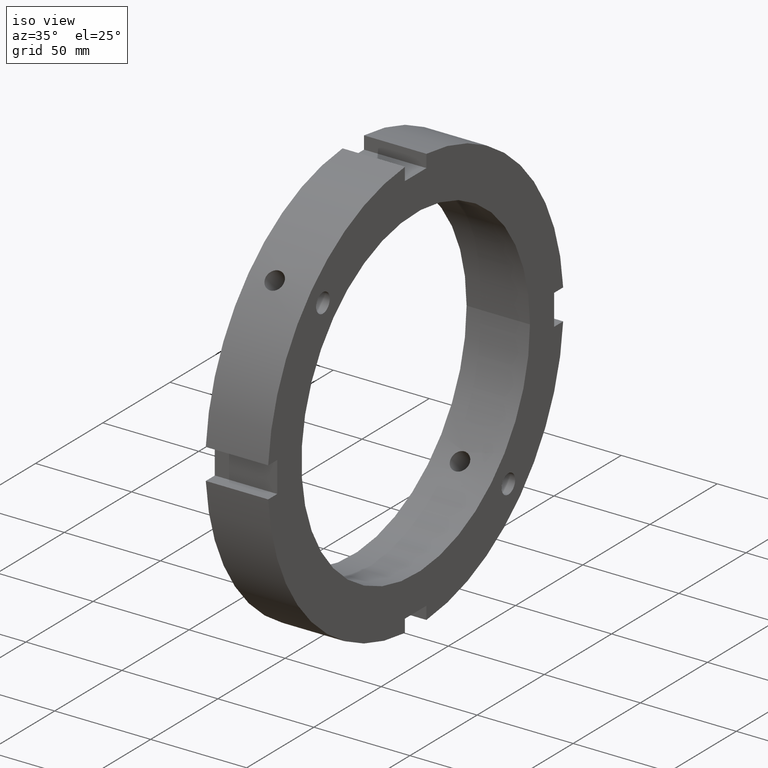
[diagram: clean part render]
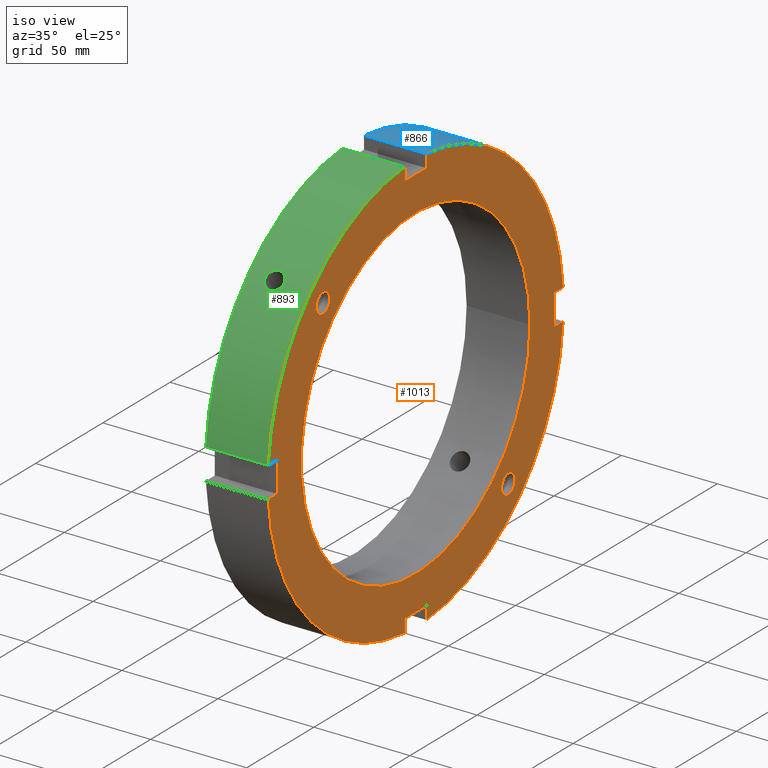
[diagram: same view with three faces highlighted in distinct colors, each labeled with its STEP entity id]
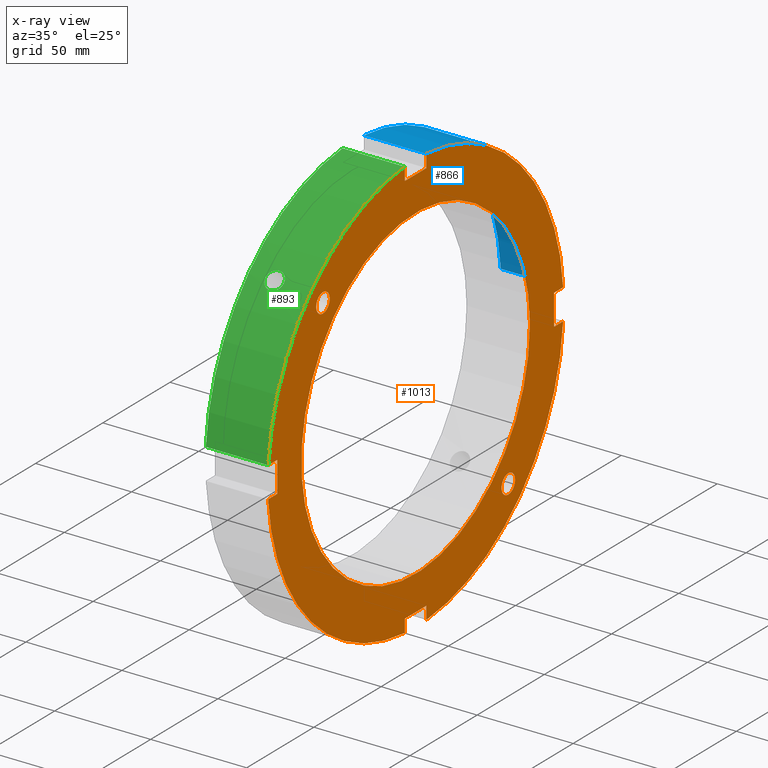
[diagram: x-ray of the same camera — body ghosted, the three highlighted faces saturated]
A machine part, iso view with three faces highlighted in distinct colors.
The next image is the same camera in x-ray (body ghosted, the three faces saturated) — at least one of them is partly hidden behind the body in this view.
Their STEP definitions:

[orange] entity #1013 — the highlighted planar face has unit normal (1, 0, 0).
#73=CARTESIAN_POINT('',(32.999999999999979,-73.995911165688355,68.942911165688386));
#74=VERTEX_POINT('',#73);
#75=CARTESIAN_POINT('',(32.999999999999979,-68.942911165688358,68.942911165688386));
#76=DIRECTION('',(-1.0,0.0,0.0));
#77=DIRECTION('',(0.0,-1.0,0.0));
#78=AXIS2_PLACEMENT_3D('',#75,#76,#77);
#79=CIRCLE('',#78,5.053);
#80=EDGE_CURVE('',#74,#74,#79,.T.);
#422=CARTESIAN_POINT('',(32.999999999999979,68.942911165688358,-73.995911165688369));
#423=VERTEX_POINT('',#422);
#424=CARTESIAN_POINT('',(32.999999999999979,68.942911165688358,-68.942911165688372));
#425=DIRECTION('',(-1.0,0.0,0.0));
#426=DIRECTION('',(0.0,0.0,-1.0));
#427=AXIS2_PLACEMENT_3D('',#424,#425,#426);
#428=CIRCLE('',#427,5.053);
#429=EDGE_CURVE('',#423,#423,#428,.T.);
#543=CARTESIAN_POINT('',(32.999999999999979,-8.000000000000014,-103.0));
#544=VERTEX_POINT('',#543);
#551=CARTESIAN_POINT('',(32.999999999999979,-8.000000000000014,-109.70870521521982));
#552=VERTEX_POINT('',#551);
#553=CARTESIAN_POINT('',(32.999999999999979,-8.000000000000009,-109.70870521521982));
#554=DIRECTION('',(0.0,0.0,1.0));
#555=VECTOR('',#554,6.708705215219823);
#556=LINE('',#553,#555);
#557=EDGE_CURVE('',#552,#544,#556,.T.);
#583=CARTESIAN_POINT('',(32.999999999999979,7.999999999999973,-109.70870521521982));
#584=VERTEX_POINT('',#583);
#591=CARTESIAN_POINT('',(32.999999999999979,7.999999999999976,-103.0));
#592=VERTEX_POINT('',#591);
#593=CARTESIAN_POINT('',(32.999999999999979,7.999999999999973,-103.00000000000001));
#594=DIRECTION('',(0.0,0.0,-1.0));
#595=VECTOR('',#594,6.708705215219808);
#596=LINE('',#593,#595);
#597=EDGE_CURVE('',#592,#584,#596,.T.);
#620=CARTESIAN_POINT('',(32.999999999999979,-8.000000000000014,-102.99999999999999));
#621=DIRECTION('',(0.0,1.0,0.0));
#622=VECTOR('',#621,15.999999999999993);
#623=LINE('',#620,#622);
#624=EDGE_CURVE('',#544,#592,#623,.T.);
#645=CARTESIAN_POINT('',(32.999999999999979,-103.0,8.000000000000009));
#646=VERTEX_POINT('',#645);
#653=CARTESIAN_POINT('',(32.999999999999979,-109.70870521521982,8.000000000000007));
#654=VERTEX_POINT('',#653);
#655=CARTESIAN_POINT('',(32.999999999999979,-109.70870521521982,8.000000000000007));
#656=DIRECTION('',(0.0,1.0,0.0));
#657=VECTOR('',#656,6.708705215219823);
#658=LINE('',#655,#657);
#659=EDGE_CURVE('',#654,#646,#658,.T.);
#685=CARTESIAN_POINT('',(32.999999999999979,-109.70870521521982,-7.99999999999998));
#686=VERTEX_POINT('',#685);
#693=CARTESIAN_POINT('',(32.999999999999979,-103.0,-7.999999999999981));
#694=VERTEX_POINT('',#693);
#695=CARTESIAN_POINT('',(32.999999999999979,-103.0,-7.999999999999981));
#696=DIRECTION('',(0.0,-1.0,0.0));
#697=VECTOR('',#696,6.708705215219823);
#698=LINE('',#695,#697);
#699=EDGE_CURVE('',#694,#686,#698,.T.);
#722=CARTESIAN_POINT('',(32.999999999999979,-103.0,8.000000000000007));
#723=DIRECTION('',(0.0,0.0,-1.0));
#724=VECTOR('',#723,15.999999999999989);
#725=LINE('',#722,#724);
#726=EDGE_CURVE('',#646,#694,#725,.T.);
#747=CARTESIAN_POINT('',(32.999999999999979,8.000000000000002,103.0));
#748=VERTEX_POINT('',#747);
#755=CARTESIAN_POINT('',(32.999999999999979,8.0,109.70870521521982));
#756=VERTEX_POINT('',#755);
#757=CARTESIAN_POINT('',(32.999999999999979,8.000000000000011,109.70870521521982));
#758=DIRECTION('',(0.0,0.0,-1.0));
#759=VECTOR('',#758,6.708705215219823);
#760=LINE('',#757,#759);
#761=EDGE_CURVE('',#756,#748,#760,.T.);
#787=CARTESIAN_POINT('',(32.999999999999979,-7.999999999999986,109.70870521521982));
#788=VERTEX_POINT('',#787);
#795=CARTESIAN_POINT('',(32.999999999999979,-7.999999999999989,103.0));
#796=VERTEX_POINT('',#795);
#797=CARTESIAN_POINT('',(32.999999999999979,-7.999999999999988,103.0));
#798=DIRECTION('',(0.0,0.0,1.0));
#799=VECTOR('',#798,6.708705215219823);
#800=LINE('',#797,#799);
#801=EDGE_CURVE('',#796,#788,#800,.T.);
#824=CARTESIAN_POINT('',(32.999999999999979,8.000000000000007,103.0));
#825=DIRECTION('',(0.0,-1.0,0.0));
#826=VECTOR('',#825,15.999999999999993);
#827=LINE('',#824,#826);
#828=EDGE_CURVE('',#748,#796,#827,.T.);
#840=CARTESIAN_POINT('',(32.999999999999979,109.70870521521982,7.999999999999993));
#841=VERTEX_POINT('',#840);
#842=CARTESIAN_POINT('',(32.999999999999979,0.0,0.0));
#843=DIRECTION('',(1.0,0.0,0.0));
#844=DIRECTION('',(0.0,1.0,0.0));
#845=AXIS2_PLACEMENT_3D('',#842,#843,#844);
#846=CIRCLE('',#845,110.0);
#847=EDGE_CURVE('',#841,#756,#846,.T.);
#873=CARTESIAN_POINT('',(32.999999999999979,0.0,0.0));
#874=DIRECTION('',(1.0,0.0,0.0));
#875=DIRECTION('',(0.0,1.0,0.0));
#876=AXIS2_PLACEMENT_3D('',#873,#874,#875);
#877=CIRCLE('',#876,110.0);
#878=EDGE_CURVE('',#788,#654,#877,.T.);
#909=CARTESIAN_POINT('',(32.999999999999979,109.70870521521982,-7.999999999999994));
#910=VERTEX_POINT('',#909);
#917=CARTESIAN_POINT('',(32.999999999999979,0.0,0.0));
#918=DIRECTION('',(1.0,0.0,0.0));
#919=DIRECTION('',(0.0,1.0,0.0));
#920=AXIS2_PLACEMENT_3D('',#917,#918,#919);
#921=CIRCLE('',#920,110.0);
#922=EDGE_CURVE('',#584,#910,#921,.T.);
#936=CARTESIAN_POINT('',(32.999999999999979,0.0,0.0));
#937=DIRECTION('',(1.0,0.0,0.0));
#938=DIRECTION('',(0.0,1.0,0.0));
#939=AXIS2_PLACEMENT_3D('',#936,#937,#938);
#940=CIRCLE('',#939,110.0);
#941=EDGE_CURVE('',#686,#552,#940,.T.);
#954=CARTESIAN_POINT('',(32.999999999999979,97.5,0.0));
#955=DIRECTION('',(1.0,0.0,0.0));
#956=DIRECTION('',(0.0,0.0,-1.0));
#957=AXIS2_PLACEMENT_3D('',#954,#955,#956);
#958=PLANE('',#957);
#959=ORIENTED_EDGE('',*,*,#557,.T.);
#960=ORIENTED_EDGE('',*,*,#624,.T.);
#961=ORIENTED_EDGE('',*,*,#597,.T.);
#962=ORIENTED_EDGE('',*,*,#922,.T.);
#963=CARTESIAN_POINT('',(32.999999999999979,103.0,-7.999999999999995));
#964=VERTEX_POINT('',#963);
#965=CARTESIAN_POINT('',(32.999999999999979,109.70870521521982,-7.999999999999995));
#966=DIRECTION('',(0.0,-1.0,0.0));
#967=VECTOR('',#966,6.708705215219823);
#968=LINE('',#965,#967);
#969=EDGE_CURVE('',#910,#964,#968,.T.);
#970=ORIENTED_EDGE('',*,*,#969,.T.);
#971=CARTESIAN_POINT('',(32.999999999999979,103.0,7.999999999999995));
#972=VERTEX_POINT('',#971);
#973=CARTESIAN_POINT('',(32.999999999999979,103.0,-7.999999999999996));
#974=DIRECTION('',(0.0,0.0,1.0));
#975=VECTOR('',#974,15.999999999999989);
#976=LINE('',#973,#975);
#977=EDGE_CURVE('',#964,#972,#976,.T.);
#978=ORIENTED_EDGE('',*,*,#977,.T.);
#979=CARTESIAN_POINT('',(32.999999999999979,103.0,7.999999999999995));
#980=DIRECTION('',(0.0,1.0,0.0));
#981=VECTOR('',#980,6.708705215219823);
#982=LINE('',#979,#981);
#983=EDGE_CURVE('',#972,#841,#982,.T.);
#984=ORIENTED_EDGE('',*,*,#983,.T.);
#985=ORIENTED_EDGE('',*,*,#847,.T.);
#986=ORIENTED_EDGE('',*,*,#761,.T.);
#987=ORIENTED_EDGE('',*,*,#828,.T.);
#988=ORIENTED_EDGE('',*,*,#801,.T.);
#989=ORIENTED_EDGE('',*,*,#878,.T.);
#990=ORIENTED_EDGE('',*,*,#659,.T.);
#991=ORIENTED_EDGE('',*,*,#726,.T.);
#992=ORIENTED_EDGE('',*,*,#699,.T.);
#993=ORIENTED_EDGE('',*,*,#941,.T.);
#994=EDGE_LOOP('',(#959,#960,#961,#962,#970,#978,#984,#985,#986,#987,#988,#989,#990,#991,#992,#993));
#995=FACE_OUTER_BOUND('',#994,.T.);
#996=ORIENTED_EDGE('',*,*,#80,.T.);
#997=EDGE_LOOP('',(#996));
#998=FACE_BOUND('',#997,.T.);
#999=ORIENTED_EDGE('',*,*,#429,.T.);
#1000=EDGE_LOOP('',(#999));
#1001=FACE_BOUND('',#1000,.T.);
#1002=CARTESIAN_POINT('',(32.999999999999986,85.0,0.0));
#1003=VERTEX_POINT('',#1002);
#1004=CARTESIAN_POINT('',(32.999999999999986,0.0,0.0));
#1005=DIRECTION('',(1.0,0.0,0.0));
#1006=DIRECTION('',(0.0,1.0,0.0));
#1007=AXIS2_PLACEMENT_3D('',#1004,#1005,#1006);
#1008=CIRCLE('',#1007,85.0);
#1009=EDGE_CURVE('',#1003,#1003,#1008,.T.);
#1010=ORIENTED_EDGE('',*,*,#1009,.F.);
#1011=EDGE_LOOP('',(#1010));
#1012=FACE_BOUND('',#1011,.T.);
#1013=ADVANCED_FACE('',(#995,#998,#1001,#1012),#958,.T.);

[blue] entity #866 — the highlighted cylindrical surface (partial cylindrical patch) has radius 110 mm, axis along (1, 0, 0).
#739=CARTESIAN_POINT('',(0.499999999999967,7.999999999999999,109.70870521521982));
#740=VERTEX_POINT('',#739);
#755=CARTESIAN_POINT('',(32.999999999999979,8.0,109.70870521521982));
#756=VERTEX_POINT('',#755);
#763=CARTESIAN_POINT('',(0.499999999999968,8.000000000000002,109.70870521521982));
#764=DIRECTION('',(1.0,0.0,0.0));
#765=VECTOR('',#764,32.500000000000014);
#766=LINE('',#763,#765);
#767=EDGE_CURVE('',#740,#756,#766,.T.);
#834=CARTESIAN_POINT('',(16.749999999999975,0.0,0.0));
#835=DIRECTION('',(1.0,0.0,0.0));
#836=DIRECTION('',(0.0,1.0,0.0));
#837=AXIS2_PLACEMENT_3D('',#834,#835,#836);
#838=CYLINDRICAL_SURFACE('',#837,110.0);
#839=ORIENTED_EDGE('',*,*,#767,.T.);
#840=CARTESIAN_POINT('',(32.999999999999979,109.70870521521982,7.999999999999993));
#841=VERTEX_POINT('',#840);
#842=CARTESIAN_POINT('',(32.999999999999979,0.0,0.0));
#843=DIRECTION('',(1.0,0.0,0.0));
#844=DIRECTION('',(0.0,1.0,0.0));
#845=AXIS2_PLACEMENT_3D('',#842,#843,#844);
#846=CIRCLE('',#845,110.0);
#847=EDGE_CURVE('',#841,#756,#846,.T.);
#848=ORIENTED_EDGE('',*,*,#847,.F.);
#849=CARTESIAN_POINT('',(0.499999999999967,109.70870521521982,7.999999999999994));
#850=VERTEX_POINT('',#849);
#851=CARTESIAN_POINT('',(32.999999999999979,109.70870521521982,7.999999999999994));
#852=DIRECTION('',(-1.0,0.0,0.0));
#853=VECTOR('',#852,32.500000000000014);
#854=LINE('',#851,#853);
#855=EDGE_CURVE('',#841,#850,#854,.T.);
#856=ORIENTED_EDGE('',*,*,#855,.T.);
#857=CARTESIAN_POINT('',(0.499999999999967,0.0,0.0));
#858=DIRECTION('',(1.0,0.0,0.0));
#859=DIRECTION('',(0.0,1.0,0.0));
#860=AXIS2_PLACEMENT_3D('',#857,#858,#859);
#861=CIRCLE('',#860,110.0);
#862=EDGE_CURVE('',#850,#740,#861,.T.);
#863=ORIENTED_EDGE('',*,*,#862,.T.);
#864=EDGE_LOOP('',(#839,#848,#856,#863));
#865=FACE_OUTER_BOUND('',#864,.T.);
#866=ADVANCED_FACE('',(#865),#838,.T.);

[green] entity #893 — the highlighted cylindrical surface (partial cylindrical patch) has radius 110 mm, axis along (1, 0, 0).
#209=CARTESIAN_POINT('',(13.999999999999984,-81.101769830043281,74.313544730652438));
#210=VERTEX_POINT('',#209);
#211=CARTESIAN_POINT('',(13.999999999999984,-81.101769830043281,74.313544730652438));
#212=CARTESIAN_POINT('',(13.397219162658631,-81.101769830043281,74.313544730652438));
#213=CARTESIAN_POINT('',(12.754312377484176,-81.020444111866141,74.402605663708087));
#214=CARTESIAN_POINT('',(11.571714215531131,-80.688021853670932,74.762980297239196));
#215=CARTESIAN_POINT('',(11.03201635766915,-80.436727284065469,75.034090003951221));
#216=CARTESIAN_POINT('',(10.179758595131434,-79.852693613699714,75.655330820004025));
#217=CARTESIAN_POINT('',(9.810362950618794,-79.480973033163579,76.046858303843322));
#218=CARTESIAN_POINT('',(9.32048153488433,-78.658716575306158,76.897048310761122));
#219=CARTESIAN_POINT('',(9.199999999999983,-78.207976295969686,77.355515565070746));
#220=CARTESIAN_POINT('',(9.199999999999983,-77.355515565070746,78.207976295969701));
#221=CARTESIAN_POINT('',(9.320481534884324,-76.897048310761122,78.658716575306173));
#222=CARTESIAN_POINT('',(9.810362950618771,-76.046858303843322,79.480973033163593));
#223=CARTESIAN_POINT('',(10.179758595131441,-75.655330820004053,79.852693613699699));
#224=CARTESIAN_POINT('',(11.032016357669143,-75.034090003951235,80.436727284065455));
#225=CARTESIAN_POINT('',(11.571714215531108,-74.762980297239181,80.688021853670918));
#226=CARTESIAN_POINT('',(12.754312377484158,-74.402605663708073,81.020444111866169));
#227=CARTESIAN_POINT('',(13.397219162658626,-74.31354473065241,81.101769830043295));
#228=CARTESIAN_POINT('',(14.602780837341335,-74.31354473065241,81.101769830043295));
#229=CARTESIAN_POINT('',(15.245687622515797,-74.402605663708073,81.020444111866126));
#230=CARTESIAN_POINT('',(16.428285784468837,-74.762980297239181,80.688021853670918));
#231=CARTESIAN_POINT('',(16.967983642330818,-75.034090003951206,80.436727284065483));
#232=CARTESIAN_POINT('',(17.820241404868533,-75.655330820004025,79.852693613699728));
#233=CARTESIAN_POINT('',(18.189637049381179,-76.046858303843294,79.480973033163608));
#234=CARTESIAN_POINT('',(18.679518465115635,-76.897048310761107,78.658716575306173));
#235=CARTESIAN_POINT('',(18.799999999999983,-77.355515565070746,78.207976295969701));
#236=CARTESIAN_POINT('',(18.799999999999983,-78.207976295969686,77.35551556507076));
#237=CARTESIAN_POINT('',(18.679518465115635,-78.658716575306158,76.897048310761107));
#238=CARTESIAN_POINT('',(18.189637049381183,-79.480973033163579,76.046858303843322));
#239=CARTESIAN_POINT('',(17.820241404868526,-79.852693613699671,75.655330820004068));
#240=CARTESIAN_POINT('',(16.967983642330822,-80.436727284065455,75.034090003951249));
#241=CARTESIAN_POINT('',(16.428285784468855,-80.688021853670904,74.762980297239196));
#242=CARTESIAN_POINT('',(15.245687622515812,-81.020444111866126,74.402605663708087));
#243=CARTESIAN_POINT('',(14.602780837341339,-81.101769830043295,74.313544730652438));
#244=CARTESIAN_POINT('',(13.999999999999982,-81.101769830043295,74.313544730652438));
#245=B_SPLINE_CURVE_WITH_KNOTS('',3,(#211,#212,#213,#214,#215,#216,#217,#218,#219,#220,#221,#222,#223,#224,#225,#226,#227,#228,#229,#230,#231,#232,#233,#234,#235,#236,#237,#238,#239,#240,#241,#242,#243,#244),.UNSPECIFIED.,.T.,.U.,(4,2,2,2,2,2,2,2,2,2,2,2,2,2,2,2,4),(0.0,0.180834251202406,0.361668502404812,0.542502731458979,0.723336960513146,0.904171189567311,1.085005418621476,1.265839669823882,1.446673921026289,1.627508172228695,1.8083424234311,1.989176652485268,2.170010881539435,2.3508451105936,2.531679339647764,2.712513590850171,2.893347842052578),.UNSPECIFIED.);
#246=EDGE_CURVE('',#210,#210,#245,.T.);
#637=CARTESIAN_POINT('',(0.499999999999967,-109.70870521521982,8.000000000000005));
#638=VERTEX_POINT('',#637);
#653=CARTESIAN_POINT('',(32.999999999999979,-109.70870521521982,8.000000000000007));
#654=VERTEX_POINT('',#653);
#661=CARTESIAN_POINT('',(0.499999999999968,-109.70870521521982,8.000000000000007));
#662=DIRECTION('',(1.0,0.0,0.0));
#663=VECTOR('',#662,32.500000000000014);
#664=LINE('',#661,#663);
#665=EDGE_CURVE('',#638,#654,#664,.T.);
#777=CARTESIAN_POINT('',(0.499999999999967,-7.999999999999988,109.70870521521982));
#778=VERTEX_POINT('',#777);
#787=CARTESIAN_POINT('',(32.999999999999979,-7.999999999999986,109.70870521521982));
#788=VERTEX_POINT('',#787);
#789=CARTESIAN_POINT('',(32.999999999999979,-7.999999999999988,109.70870521521982));
#790=DIRECTION('',(-1.0,0.0,0.0));
#791=VECTOR('',#790,32.500000000000014);
#792=LINE('',#789,#791);
#793=EDGE_CURVE('',#788,#778,#792,.T.);
#867=CARTESIAN_POINT('',(16.749999999999975,0.0,0.0));
#868=DIRECTION('',(1.0,0.0,0.0));
#869=DIRECTION('',(0.0,1.0,0.0));
#870=AXIS2_PLACEMENT_3D('',#867,#868,#869);
#871=CYLINDRICAL_SURFACE('',#870,110.0);
#872=ORIENTED_EDGE('',*,*,#665,.T.);
#873=CARTESIAN_POINT('',(32.999999999999979,0.0,0.0));
#874=DIRECTION('',(1.0,0.0,0.0));
#875=DIRECTION('',(0.0,1.0,0.0));
#876=AXIS2_PLACEMENT_3D('',#873,#874,#875);
#877=CIRCLE('',#876,110.0);
#878=EDGE_CURVE('',#788,#654,#877,.T.);
#879=ORIENTED_EDGE('',*,*,#878,.F.);
#880=ORIENTED_EDGE('',*,*,#793,.T.);
#881=CARTESIAN_POINT('',(0.499999999999967,0.0,0.0));
#882=DIRECTION('',(1.0,0.0,0.0));
#883=DIRECTION('',(0.0,1.0,0.0));
#884=AXIS2_PLACEMENT_3D('',#881,#882,#883);
#885=CIRCLE('',#884,110.0);
#886=EDGE_CURVE('',#778,#638,#885,.T.);
#887=ORIENTED_EDGE('',*,*,#886,.T.);
#888=EDGE_LOOP('',(#872,#879,#880,#887));
#889=FACE_OUTER_BOUND('',#888,.T.);
#890=ORIENTED_EDGE('',*,*,#246,.T.);
#891=EDGE_LOOP('',(#890));
#892=FACE_BOUND('',#891,.T.);
#893=ADVANCED_FACE('',(#889,#892),#871,.T.);